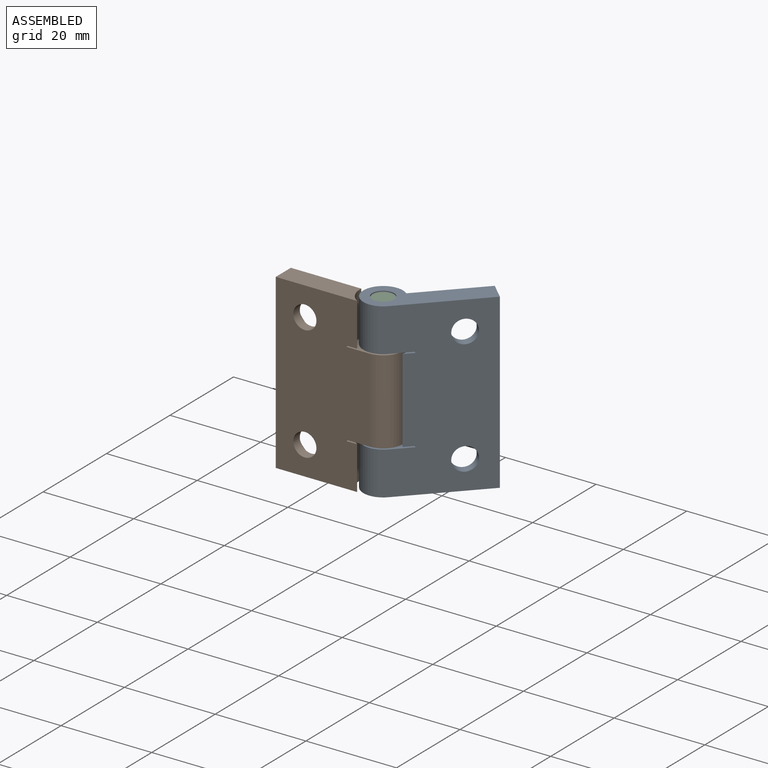
[diagram: assembled view]
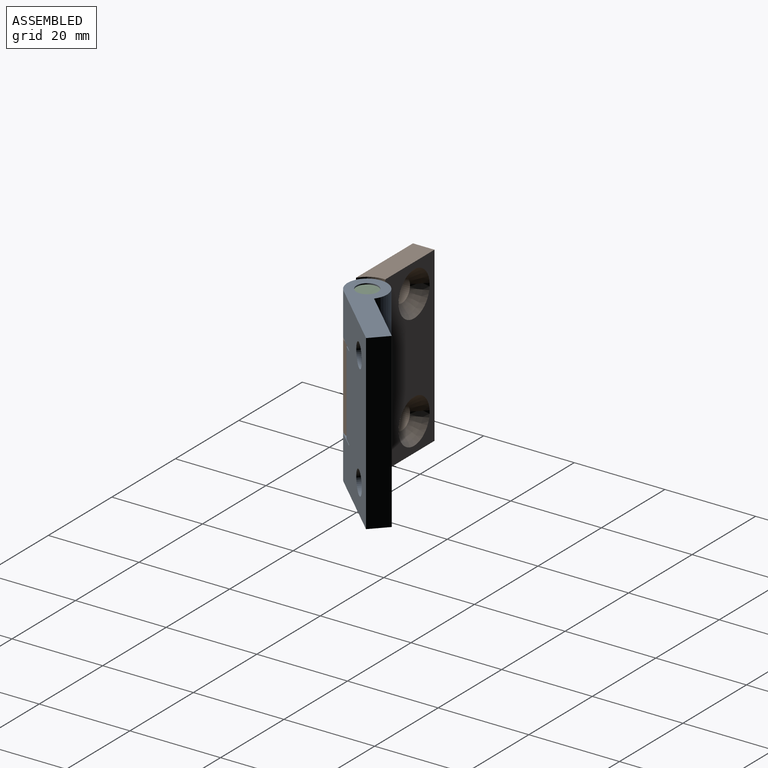
[diagram: assembled view, second angle]
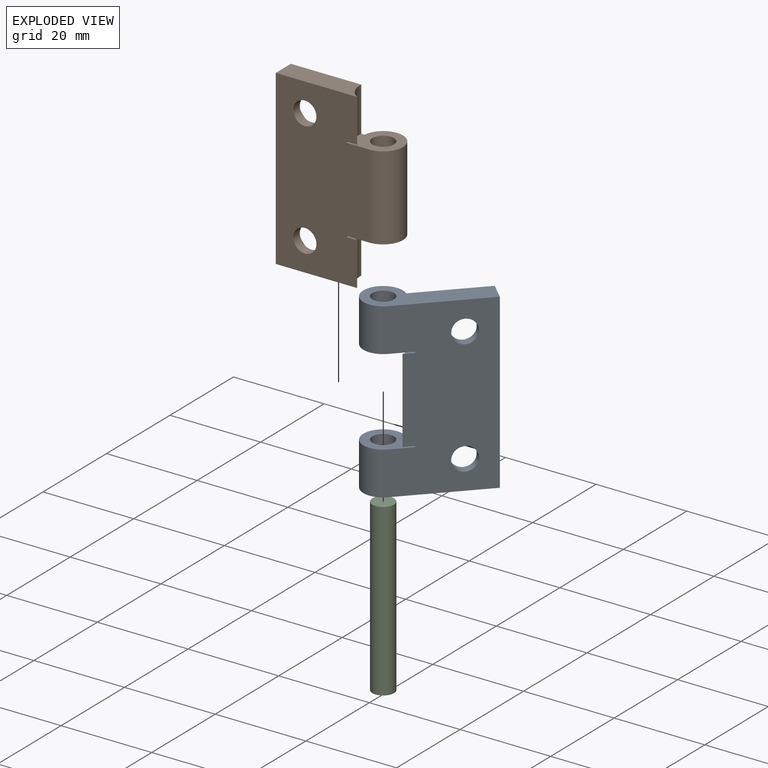
[diagram: exploded view]
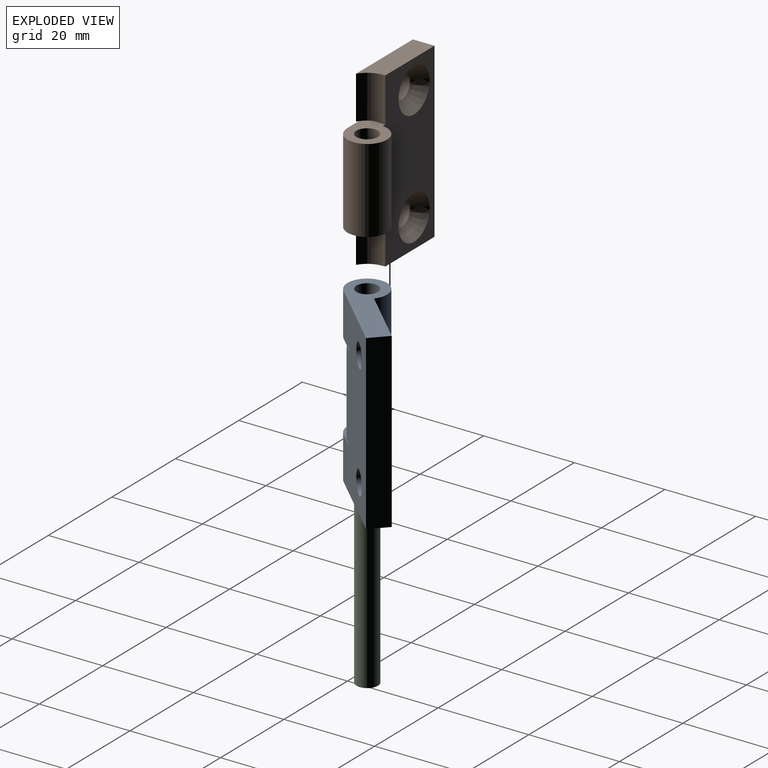
[diagram: exploded view, second angle]
ASSEMBLY  parts=3 mates=2
PART A: 20 faces, bbox 25x8.7x38.1 mm
  f0: cylinder r=2.55mm len=5.11mm, axis (0,1,0), area 33.1mm2, adj f1,f16
  f1: cone r=4.89mm half-angle=41deg, axis (0,1,0), area 83.3mm2, adj f0,f14
  f2: cylinder r=2.55mm len=5.11mm, axis (0,1,0), area 33.1mm2, adj f3,f16
  f3: cone r=4.89mm half-angle=41deg, axis (0,1,0), area 83.3mm2, adj f2,f14
  f4: cylinder r=2.38mm len=9.53mm, axis (0,0,-1), area 142.5mm2, adj f15,f17
  f5: cylinder r=5.13mm len=19.05mm, axis (0,0,1), area 104.4mm2, adj f11,f12,f13,f14,f15,f16,f18,f19
  f6: cylinder r=4.37mm len=9.53mm, axis (0,0,-1), area 192.3mm2, adj f14,f15,f16,f17
  f7: cylinder r=4.37mm len=9.53mm, axis (0,0,-1), area 192.3mm2, adj f10,f13,f14,f16
  f8: cylinder r=2.38mm len=9.53mm, axis (0,0,-1), area 142.5mm2, adj f10,f13
  f9: plane 38.1x4.75mm, normal (1,0,0), area 181mm2, adj f10,f14,f16,f17
  f10: plane 25x8.73mm, normal (0,0,-1), area 123.4mm2, adj f7,f8,f9,f14,f16
  f11: plane 3.98x2.43mm, normal (0,0,-1), area 3.1mm2, adj f5,f12,f16
  f12: plane 3.98x0.25mm, normal (-1,0,0), area 1mm2, adj f5,f11,f13,f16
  f13: plane 9.49x8.73mm, normal (0,0,1), area 49.7mm2, adj f5,f7,f8,f12,f14,f16
  f14: plane 38.1x16.29mm, normal (0,1,0), area 455.9mm2, adj f1,f3,f5,f6,f7,f9,f10,f13
  f15: plane 9.49x8.73mm, normal (0,0,-1), area 49.7mm2, adj f4,f5,f6,f14,f16,f19
  f16: plane 38.1x20.64mm, normal (0,-1,0), area 693mm2, adj f0,f2,f5,f6,f7,f9,f10,f11
  f17: plane 25x8.73mm, normal (0,0,1), area 123.4mm2, adj f4,f6,f9,f14,f16
  f18: plane 3.98x2.43mm, normal (0,0,1), area 3.1mm2, adj f5,f16,f19
  f19: plane 3.98x0.25mm, normal (-1,0,0), area 1mm2, adj f5,f15,f16,f18
PART B: 21 faces, bbox 25x8.7x38.1 mm
  f0: cylinder r=2.55mm len=5.11mm, axis (0,1,0), area 33.1mm2, adj f1,f6
  f1: cone r=4.89mm half-angle=41deg, axis (0,1,0), area 83.3mm2, adj f0,f7
  f2: cylinder r=2.55mm len=5.11mm, axis (0,1,0), area 33.1mm2, adj f3,f6
  f3: cone r=4.89mm half-angle=41deg, axis (0,1,0), area 83.3mm2, adj f2,f7
  f4: cylinder r=5.13mm len=9.53mm, axis (0,0,-1), area 53.4mm2, adj f6,f7,f10,f11,f16
  f5: cylinder r=2.38mm len=18.54mm, axis (0,0,-1), area 277.4mm2, adj f17,f20
  f6: plane 38.1x20.64mm, normal (0,-1,0), area 691.6mm2, adj f0,f2,f4,f8,f11,f12,f13,f14
  f7: plane 38.1x16.29mm, normal (0,1,0), area 455.5mm2, adj f1,f3,f4,f8,f11,f12,f13,f14
  f8: cylinder r=4.37mm len=18.54mm, axis (0,0,-1), area 374.3mm2, adj f6,f7,f17,f20
  f9: plane 0.77x0.01mm, normal (0,0,1), area 0mm2, adj f14,f18
  f10: plane 0.77x0.01mm, normal (0,0,-1), area 0mm2, adj f4,f15
  f11: plane 17.95x4.75mm, normal (0,0,-1), area 76.8mm2, adj f4,f6,f7,f13
  f12: plane 17.95x4.75mm, normal (0,0,1), area 76.8mm2, adj f6,f7,f13,f14
  f13: plane 38.1x4.75mm, normal (-1,0,0), area 181mm2, adj f6,f7,f11,f12
  f14: cylinder r=5.13mm len=9.53mm, axis (0,0,1), area 53.4mm2, adj f6,f7,f9,f12,f19
  f15: plane 4.75x0.25mm, normal (1,0,0), area 1.2mm2, adj f6,f7,f10,f16,f17
  f16: plane 3.98x2.43mm, normal (0,0,1), area 3.1mm2, adj f4,f6,f15
  f17: plane 9.48x8.73mm, normal (0,0,-1), area 49.7mm2, adj f5,f6,f7,f8,f15
  f18: plane 4.75x0.25mm, normal (1,0,0), area 1.2mm2, adj f6,f7,f9,f19,f20
  f19: plane 3.98x2.43mm, normal (0,0,-1), area 3.1mm2, adj f6,f14,f18
  f20: plane 9.48x8.73mm, normal (0,0,1), area 49.7mm2, adj f5,f6,f7,f8,f18
PART C: 3 faces, bbox 4.8x4.8x37.6 mm
  f0: cylinder r=2.38mm len=37.59mm, axis (0,0,-1), area 562.4mm2, adj f1,f2
  f1: plane 4.76x4.76mm, normal (0,0,1), area 17.8mm2, adj f0
  f2: plane 4.76x4.76mm, normal (0,0,-1), area 17.8mm2, adj f0
PLACE A rot(axis=(0,0,1),46.4deg) t=(3.16,1.35,0)mm
PLACE B at identity fixed
PLACE C at identity fixed
MATE planar A.f17 <-> B.f12  axis (0,0,1) through (6.46,9.17,19.05)mm
MATE cylindrical A.f4 <-> C.f0  axis (0,0,-1) through (0,4.37,14.29)mm
